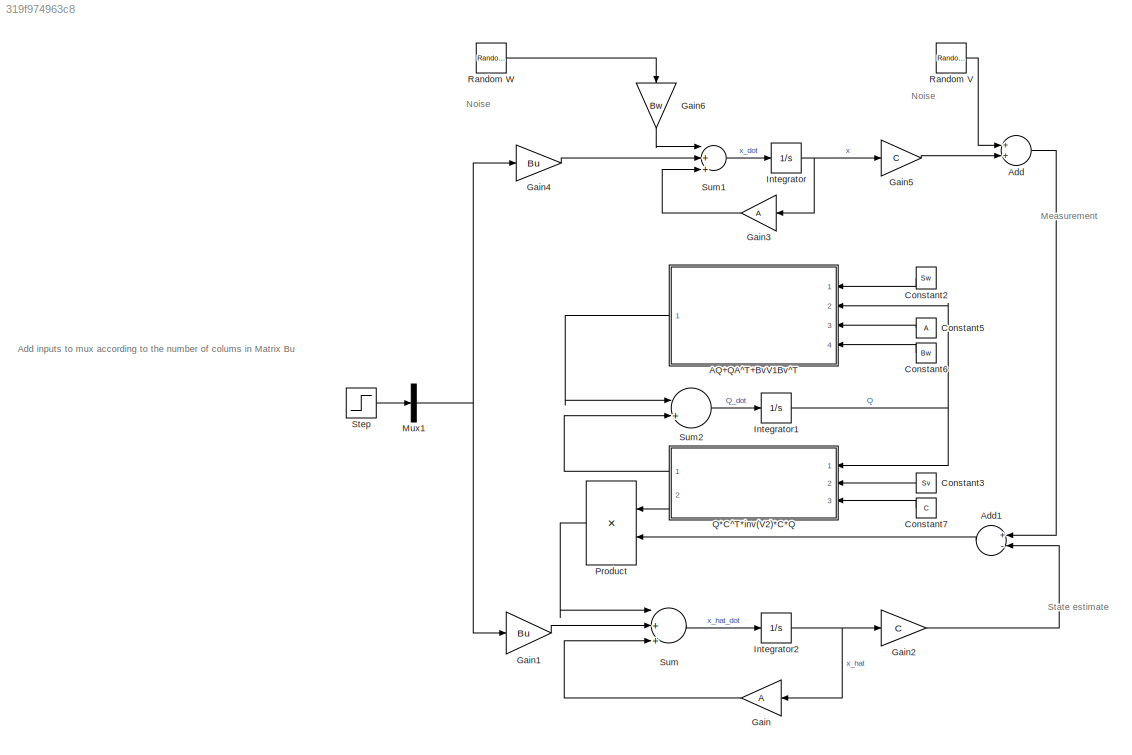
MODEL slx_319f974963c8
KIND model
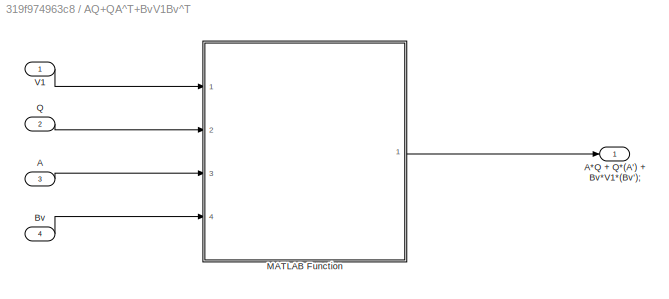
BLOCK [SubSystem] AQ+QA^T+BvV1Bv^T
  Ports = [4, 1]
  RequestExecContextInheritance = off
  TreatAsAtomicUnit = on
BLOCK [Inport] AQ+QA^T+BvV1Bv^T/A
  IconDisplay = Port number
  Port = 3
BLOCK [Outport] AQ+QA^T+BvV1Bv^T/A*Q + Q*(A') + Bv*V1*(Bv');
  IconDisplay = Port number
BLOCK [Inport] AQ+QA^T+BvV1Bv^T/Bv
  IconDisplay = Port number
  Port = 4
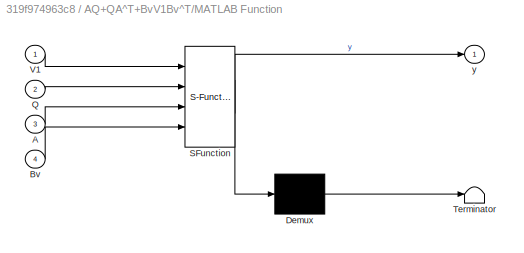
BLOCK [SubSystem] AQ+QA^T+BvV1Bv^T/MATLAB Function
  ErrorFcn = Stateflow.Translate.translate
  PermitHierarchicalResolution = ExplicitOnly
  Ports = [4, 1]
  RequestExecContextInheritance = off
  SFBlockType = MATLAB Function
  TreatAsAtomicUnit = on
BLOCK [Demux] AQ+QA^T+BvV1Bv^T/MATLAB Function/ Demux 
  Outputs = 1
  Ports = [1, 1]
BLOCK [S-Function] AQ+QA^T+BvV1Bv^T/MATLAB Function/ SFunction 
  EnableBusSupport = off
  FunctionName = sf_sfun
  PortCounts = [4 2]
  Ports = [4, 2]
  Tag = Stateflow S-Function KalmanFilterExample 2
BLOCK [Terminator] AQ+QA^T+BvV1Bv^T/MATLAB Function/ Terminator 
BLOCK [Inport] AQ+QA^T+BvV1Bv^T/MATLAB Function/A
  IconDisplay = Port number
  Port = 3
BLOCK [Inport] AQ+QA^T+BvV1Bv^T/MATLAB Function/Bv
  IconDisplay = Port number
  Port = 4
BLOCK [Inport] AQ+QA^T+BvV1Bv^T/MATLAB Function/Q
  IconDisplay = Port number
  Port = 2
BLOCK [Inport] AQ+QA^T+BvV1Bv^T/MATLAB Function/V1
  IconDisplay = Port number
BLOCK [Outport] AQ+QA^T+BvV1Bv^T/MATLAB Function/y
  IconDisplay = Port number
BLOCK [Inport] AQ+QA^T+BvV1Bv^T/Q
  IconDisplay = Port number
  Port = 2
BLOCK [Inport] AQ+QA^T+BvV1Bv^T/V1
  IconDisplay = Port number
BLOCK [Sum] Add
  InputSameDT = off
  OutDataTypeStr = Inherit: Inherit via internal rule
  Ports = [2, 1]
  SaturateOnIntegerOverflow = off
BLOCK [Sum] Add1
  InputSameDT = off
  Inputs = +-
  OutDataTypeStr = Inherit: Inherit via internal rule
  Ports = [2, 1]
  SaturateOnIntegerOverflow = off
BLOCK [Constant] Constant2
  Value = Sw
BLOCK [Constant] Constant3
  Value = Sv
BLOCK [Constant] Constant5
  Value = A
  VectorParams1D = off
BLOCK [Constant] Constant6
  Value = Bw
  VectorParams1D = off
BLOCK [Constant] Constant7
  Value = C
  VectorParams1D = off
BLOCK [Gain] Gain
  Gain = A
  Multiplication = Matrix(K*u)
  OutDataTypeStr = Inherit: Inherit via internal rule
  ParamDataTypeStr = Inherit: Inherit via internal rule
  SaturateOnIntegerOverflow = off
BLOCK [Gain] Gain1
  Gain = Bu
  Multiplication = Matrix(K*u)
  OutDataTypeStr = Inherit: Inherit via internal rule
  ParamDataTypeStr = Inherit: Inherit via internal rule
  SaturateOnIntegerOverflow = off
BLOCK [Gain] Gain2
  Gain = C
  Multiplication = Matrix(K*u)
  OutDataTypeStr = Inherit: Inherit via internal rule
  ParamDataTypeStr = Inherit: Inherit via internal rule
  SaturateOnIntegerOverflow = off
BLOCK [Gain] Gain3
  Gain = A
  Multiplication = Matrix(K*u)
  OutDataTypeStr = Inherit: Inherit via internal rule
  ParamDataTypeStr = Inherit: Inherit via internal rule
  SaturateOnIntegerOverflow = off
BLOCK [Gain] Gain4
  Gain = Bu
  Multiplication = Matrix(K*u)
  OutDataTypeStr = Inherit: Inherit via internal rule
  ParamDataTypeStr = Inherit: Inherit via internal rule
  SaturateOnIntegerOverflow = off
BLOCK [Gain] Gain5
  Gain = C
  Multiplication = Matrix(K*u)
  OutDataTypeStr = Inherit: Inherit via internal rule
  ParamDataTypeStr = Inherit: Inherit via internal rule
  SaturateOnIntegerOverflow = off
BLOCK [Gain] Gain6
  Gain = Bw
  OutDataTypeStr = Inherit: Inherit via internal rule
  ParamDataTypeStr = Inherit: Inherit via internal rule
  SaturateOnIntegerOverflow = off
BLOCK [Integrator] Integrator
  InitialCondition = X_init
  LowerSaturationLimit = -1
  Ports = [1, 1]
  UpperSaturationLimit = 1
BLOCK [Integrator] Integrator1
  InitialCondition = Se_init
  Ports = [1, 1]
BLOCK [Integrator] Integrator2
  InitialCondition = X_init
  Ports = [1, 1]
BLOCK [Mux] Mux1
  DisplayOption = bar
  Inputs = 1
  Ports = [1, 1]
BLOCK [Product] Product
  InputSameDT = off
  Multiplication = Matrix(*)
  OutDataTypeStr = Inherit: Inherit via internal rule
  Ports = [2, 1]
  RndMeth = Floor
  SaturateOnIntegerOverflow = off
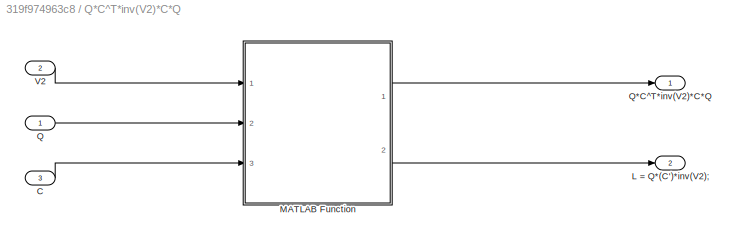
BLOCK [SubSystem] Q*C^T*inv(V2)*C*Q
  Ports = [3, 2]
  RequestExecContextInheritance = off
  TreatAsAtomicUnit = on
BLOCK [Inport] Q*C^T*inv(V2)*C*Q/C
  IconDisplay = Port number
  Port = 3
BLOCK [Outport] Q*C^T*inv(V2)*C*Q/L = Q*(C')*inv(V2);
  IconDisplay = Port number
  Port = 2
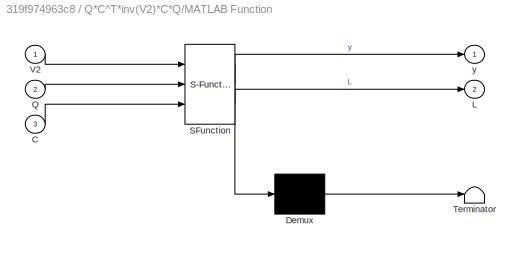
BLOCK [SubSystem] Q*C^T*inv(V2)*C*Q/MATLAB Function
  ErrorFcn = Stateflow.Translate.translate
  PermitHierarchicalResolution = ExplicitOnly
  Ports = [3, 2]
  RequestExecContextInheritance = off
  SFBlockType = MATLAB Function
  TreatAsAtomicUnit = on
BLOCK [Demux] Q*C^T*inv(V2)*C*Q/MATLAB Function/ Demux 
  Outputs = 1
  Ports = [1, 1]
BLOCK [S-Function] Q*C^T*inv(V2)*C*Q/MATLAB Function/ SFunction 
  EnableBusSupport = off
  FunctionName = sf_sfun
  PortCounts = [3 3]
  Ports = [3, 3]
  Tag = Stateflow S-Function KalmanFilterExample 1
BLOCK [Terminator] Q*C^T*inv(V2)*C*Q/MATLAB Function/ Terminator 
BLOCK [Inport] Q*C^T*inv(V2)*C*Q/MATLAB Function/C
  IconDisplay = Port number
  Port = 3
BLOCK [Outport] Q*C^T*inv(V2)*C*Q/MATLAB Function/L
  IconDisplay = Port number
  Port = 2
BLOCK [Inport] Q*C^T*inv(V2)*C*Q/MATLAB Function/Q
  IconDisplay = Port number
  Port = 2
BLOCK [Inport] Q*C^T*inv(V2)*C*Q/MATLAB Function/V2
  IconDisplay = Port number
BLOCK [Outport] Q*C^T*inv(V2)*C*Q/MATLAB Function/y
  IconDisplay = Port number
BLOCK [Inport] Q*C^T*inv(V2)*C*Q/Q
  IconDisplay = Port number
BLOCK [Outport] Q*C^T*inv(V2)*C*Q/Q*C^T*inv(V2)*C*Q
  IconDisplay = Port number
BLOCK [Inport] Q*C^T*inv(V2)*C*Q/V2
  IconDisplay = Port number
  Port = 2
BLOCK [RandomNumber] Random V
  Variance = Sv
BLOCK [RandomNumber] Random W
  Variance = Sw*2
BLOCK [Step] Step
  SampleTime = 0
BLOCK [Sum] Sum
  InputSameDT = off
  Inputs = |+++
  OutDataTypeStr = Inherit: Inherit via internal rule
  Ports = [3, 1]
  SaturateOnIntegerOverflow = off
BLOCK [Sum] Sum1
  InputSameDT = off
  Inputs = |+++
  OutDataTypeStr = Inherit: Inherit via internal rule
  Ports = [3, 1]
  SaturateOnIntegerOverflow = off
BLOCK [Sum] Sum2
  InputSameDT = off
  Inputs = |+-
  OutDataTypeStr = Inherit: Inherit via internal rule
  Ports = [2, 1]
  SaturateOnIntegerOverflow = off
ANNOTATION (root): Add inputs to mux according to the number of colums in Matrix Bu
ANNOTATION (root): Measurement
ANNOTATION (root): Noise
ANNOTATION (root): State estimate
LINE AQ+QA^T+BvV1Bv^T/A:1 -> AQ+QA^T+BvV1Bv^T/MATLAB Function:3
LINE AQ+QA^T+BvV1Bv^T/Bv:1 -> AQ+QA^T+BvV1Bv^T/MATLAB Function:4
LINE AQ+QA^T+BvV1Bv^T/MATLAB Function:1 -> AQ+QA^T+BvV1Bv^T/A*Q + Q*(A') + Bv*V1*(Bv');:1
LINE AQ+QA^T+BvV1Bv^T/Q:1 -> AQ+QA^T+BvV1Bv^T/MATLAB Function:2
LINE AQ+QA^T+BvV1Bv^T/V1:1 -> AQ+QA^T+BvV1Bv^T/MATLAB Function:1
LINE AQ+QA^T+BvV1Bv^T:1 -> Sum2:1
LINE Add1:1 -> Product:2
LINE Add:1 -> Add1:1
LINE Constant2:1 -> AQ+QA^T+BvV1Bv^T:1
LINE Constant3:1 -> Q*C^T*inv(V2)*C*Q:2
LINE Constant5:1 -> AQ+QA^T+BvV1Bv^T:3
LINE Constant6:1 -> AQ+QA^T+BvV1Bv^T:4
LINE Constant7:1 -> Q*C^T*inv(V2)*C*Q:3
LINE Gain1:1 -> Sum:2
LINE Gain2:1 -> Add1:2
LINE Gain3:1 -> Sum1:3
LINE Gain4:1 -> Sum1:2
LINE Gain5:1 -> Add:2
LINE Gain6:1 -> Sum1:1
LINE Gain:1 -> Sum:3
NET Integrator1:1 -> AQ+QA^T+BvV1Bv^T:2, Q*C^T*inv(V2)*C*Q:1
NET Integrator2:1 -> Gain2:1, Gain:1
NET Integrator:1 -> Gain3:1, Gain5:1
NET Mux1:1 -> Gain1:1, Gain4:1
LINE Product:1 -> Sum:1
LINE Q*C^T*inv(V2)*C*Q/C:1 -> Q*C^T*inv(V2)*C*Q/MATLAB Function:3
LINE Q*C^T*inv(V2)*C*Q/MATLAB Function:1 -> Q*C^T*inv(V2)*C*Q/Q*C^T*inv(V2)*C*Q:1
LINE Q*C^T*inv(V2)*C*Q/MATLAB Function:2 -> Q*C^T*inv(V2)*C*Q/L = Q*(C')*inv(V2);:1
LINE Q*C^T*inv(V2)*C*Q/Q:1 -> Q*C^T*inv(V2)*C*Q/MATLAB Function:2
LINE Q*C^T*inv(V2)*C*Q/V2:1 -> Q*C^T*inv(V2)*C*Q/MATLAB Function:1
LINE Q*C^T*inv(V2)*C*Q:1 -> Sum2:2
LINE Q*C^T*inv(V2)*C*Q:2 -> Product:1
LINE Random V:1 -> Add:1
LINE Random W:1 -> Gain6:1
LINE Step:1 -> Mux1:1
LINE Sum1:1 -> Integrator:1
LINE Sum2:1 -> Integrator1:1
LINE Sum:1 -> Integrator2:1
note: NET lines group one-source signal fan-out (src -> all destinations, sorted); 1:1 wires keep LINE
CHART Q*C^T*inv(V2)*C*Q/MATLAB Function states=1 transitions=1
  STATE_LABEL 'eML_blk_kernel()'
  STATE_LABEL "SCRIPT:\nfunction [y,L] = fcn(V2,Q,C)\ny = Q*C'*((V2)\\C)*Q;\nL = Q*C'/(V2);\n\n% y = Q*C'*inv(V2)*C*Q;\n% L = Q*C'*inv(V2);"
CHART AQ+QA^T+BvV1Bv^T/MATLAB Function states=1 transitions=1
  STATE_LABEL 'eML_blk_kernel()'
  STATE_LABEL "SCRIPT:\nfunction y = fcn(V1,Q,A,Bv)\n%#codegen\n% AQ+QA^T+BvV1Bv^T\ny = A*Q + Q*(A') + Bv*V1*(Bv');"
